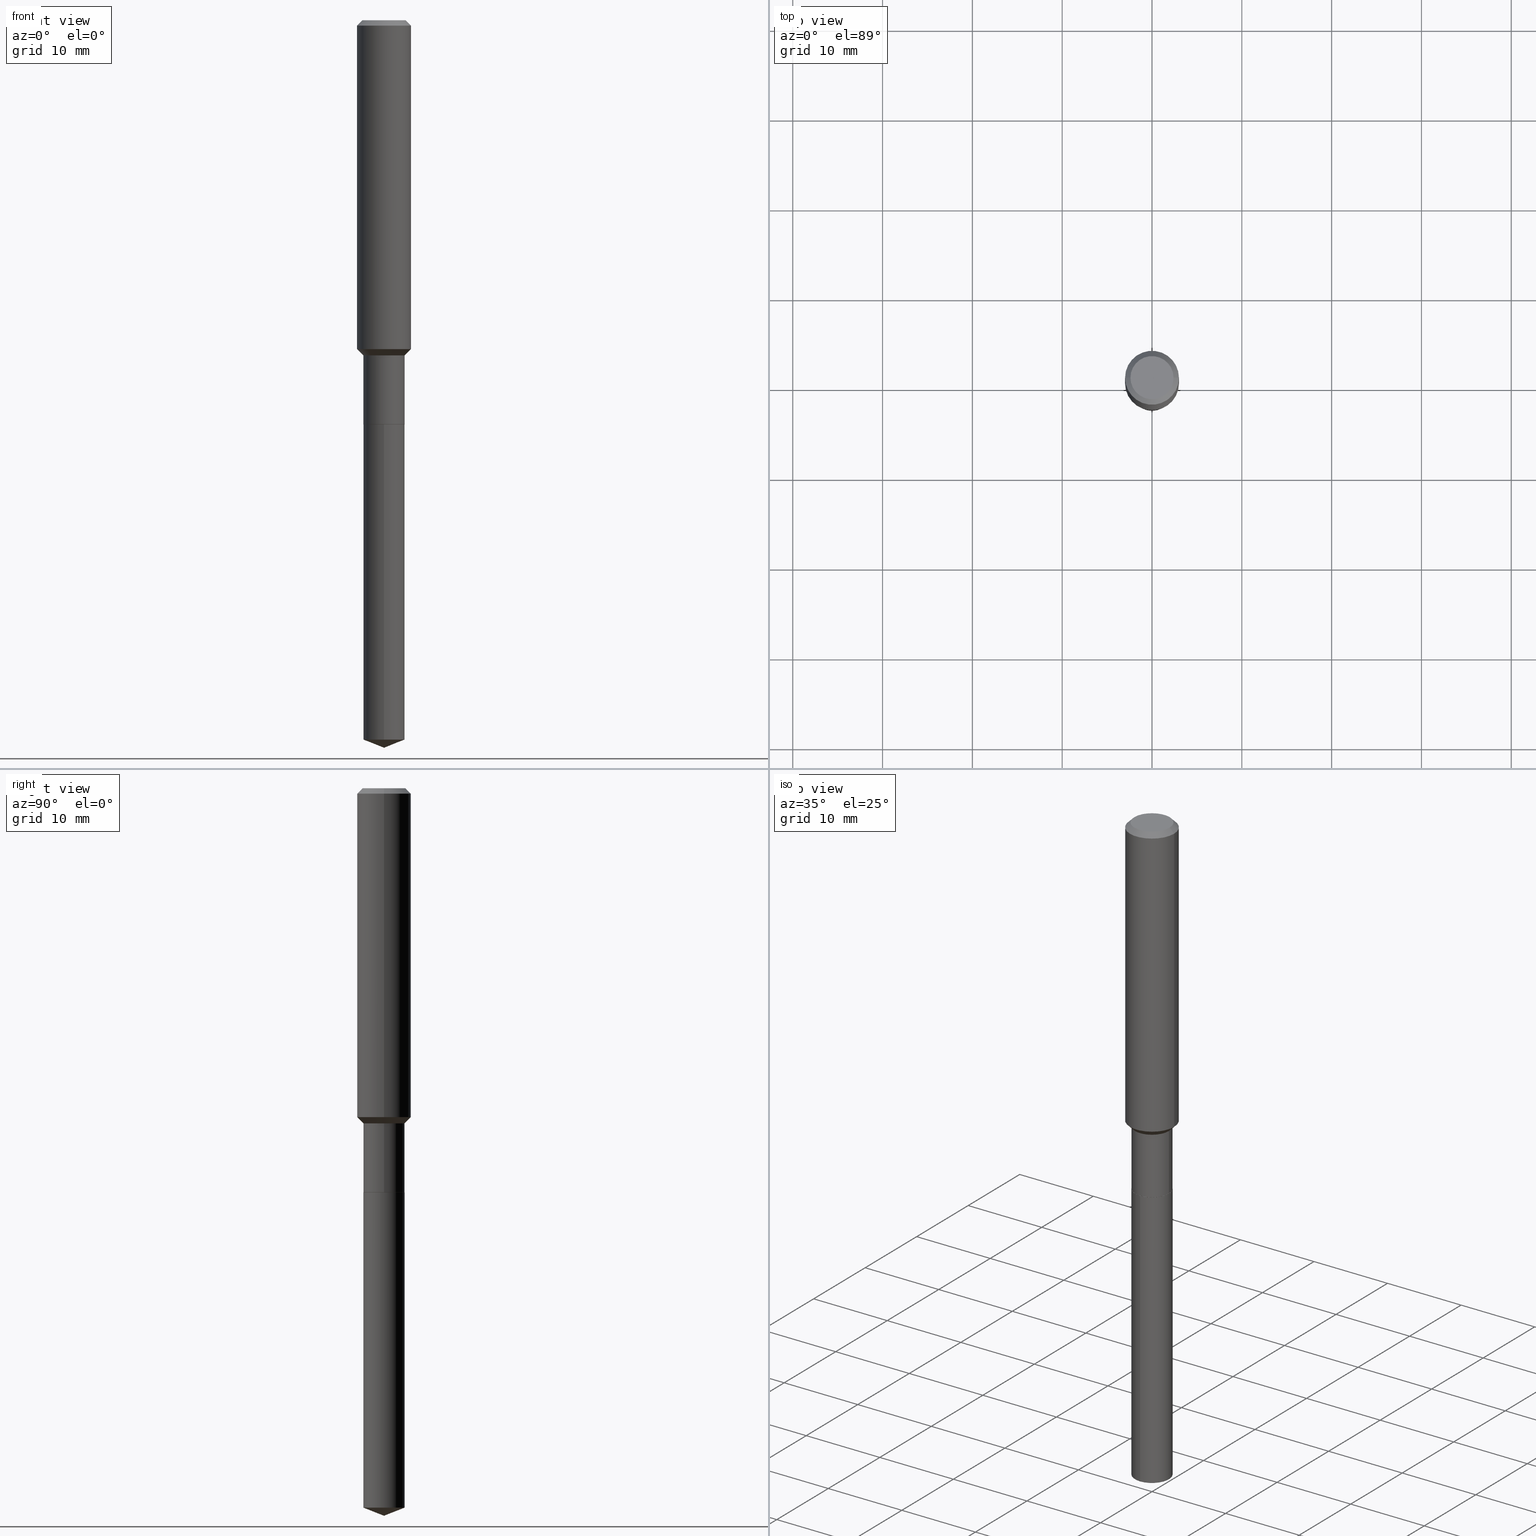
[diagram: canonical four-view strip — front | top / right | iso, engineering-drawing reading convention]
A machine part, canonical four-view strip (front | top / right | iso — engineering-drawing reading convention). The complete STEP part file that produces these views, byte-faithful:
ISO-10303-21;
HEADER;
FILE_DESCRIPTION (( 'STEP AP203' ),
    '1' );
FILE_NAME ('66622.STEP',
    '2024-04-25T02:14:11',
    ( '' ),
    ( '' ),
    'SwSTEP 2.0',
    'SolidWorks 2023',
    '' );
FILE_SCHEMA (( 'CONFIG_CONTROL_DESIGN' ));
ENDSEC;

DATA;
#1 = COORDINATED_UNIVERSAL_TIME_OFFSET ( 5, 0, .BEHIND. ) ;
#2 = LINE ( 'NONE', #375, #126 ) ;
#3 = AXIS2_PLACEMENT_3D ( 'NONE', #446, #480, #295 ) ;
#4 = CC_DESIGN_APPROVAL ( #108, ( #361 ) ) ;
#5 = CARTESIAN_POINT ( 'NONE',  ( 2.358133508849003952E-46, -3.366789680499277518E-32, -9.642868896486260050E-18 ) ) ;
#6 = DIRECTION ( 'NONE',  ( -2.445498752953222356E-29, 3.491438453366782686E-15, 1.000000000000000000 ) ) ;
#7 = PERSON ( 'UNSPECIFIED', 'UNSPECIFIED', 'UNSPECIFIED', ('UNSPECIFIED'), ('UNSPECIFIED'), ('UNSPECIFIED') ) ;
#8 = DIRECTION ( 'NONE',  ( 1.000000000000000000, -6.982962677686270655E-15, 0.000000000000000000 ) ) ;
#9 = EDGE_LOOP ( 'NONE', ( #162, #425, #11, #14 ) ) ;
#10 = DIRECTION ( 'NONE',  ( 0.7071067811864267805, -2.468850131080992517E-15, 0.7071067811866682540 ) ) ;
#11 = ORIENTED_EDGE ( 'NONE', *, *, #301, .T. ) ;
#12 = DIRECTION ( 'NONE',  ( -2.445468806185136597E-29, 3.491481338843145583E-15, 1.000000000000000000 ) ) ;
#13 = ADVANCED_FACE ( 'NONE', ( #363 ), #94, .T. ) ;
#14 = ORIENTED_EDGE ( 'NONE', *, *, #382, .F. ) ;
#15 = DIRECTION ( 'NONE',  ( 1.000000000000000000, -6.982962677686266711E-15, 0.000000000000000000 ) ) ;
#16 = ORIENTED_EDGE ( 'NONE', *, *, #246, .F. ) ;
#17 = CIRCLE ( 'NONE', #388, 0.09054999999999997773 ) ;
#18 = AXIS2_PLACEMENT_3D ( 'NONE', #403, #61, #254 ) ;
#19 = CARTESIAN_POINT ( 'NONE',  ( 0.000000000000000000, 0.000000000000000000, 0.000000000000000000 ) ) ;
#20 = ORIENTED_EDGE ( 'NONE', *, *, #484, .T. ) ;
#21 = ORIENTED_EDGE ( 'NONE', *, *, #411, .F. ) ;
#22 = LENGTH_MEASURE_WITH_UNIT ( LENGTH_MEASURE( 0.02539999999999999897 ), #101 );
#23 = FACE_OUTER_BOUND ( 'NONE', #242, .T. ) ;
#24 = COORDINATED_UNIVERSAL_TIME_OFFSET ( 5, 0, .BEHIND. ) ;
#25 = LINE ( 'NONE', #399, #220 ) ;
#26 = EDGE_CURVE ( 'NONE', #112, #98, #305, .T. ) ;
#27 = COORDINATED_UNIVERSAL_TIME_OFFSET ( 5, 0, .BEHIND. ) ;
#28 = AXIS2_PLACEMENT_3D ( 'NONE', #441, #105, #42 ) ;
#29 = DIRECTION ( 'NONE',  ( 1.000000000000000000, -6.982962677686271444E-15, 0.000000000000000000 ) ) ;
#30 = EDGE_LOOP ( 'NONE', ( #209, #132, #478, #336 ) ) ;
#31 = PRODUCT_DEFINITION ( 'UNKNOWN', '', #203, #400 ) ;
#32 = DIRECTION ( 'NONE',  ( -2.445468806185136597E-29, 3.491481338843145583E-15, 1.000000000000000000 ) ) ;
#33 = EDGE_LOOP ( 'NONE', ( #285, #323, #360, #315 ) ) ;
#34 = APPLICATION_PROTOCOL_DEFINITION ( 'international standard', 'config_control_design', 1994, #141 ) ;
#35 = CARTESIAN_POINT ( 'NONE',  ( 0.000000000000000000, 0.000000000000000000, 0.000000000000000000 ) ) ;
#36 = CLOSED_SHELL ( 'NONE', ( #137, #395, #457, #317, #157, #124, #250, #64, #13, #271, #233, #391 ) ) ;
#37 = LINE ( 'NONE', #342, #269 ) ;
#38 = AXIS2_PLACEMENT_3D ( 'NONE', #381, #190, #197 ) ;
#39 = DIRECTION ( 'NONE',  ( 1.000000000000000000, -6.982962677686265922E-15, 4.876176775795935793E-29 ) ) ;
#40 = EDGE_CURVE ( 'NONE', #318, #463, #145, .T. ) ;
#41 = PLANE ( 'NONE',  #52 ) ;
#42 = DIRECTION ( 'NONE',  ( 1.000000000000000000, -6.982962677686267499E-15, 4.875432709231658792E-29 ) ) ;
#43 = MANIFOLD_SOLID_BREP ( 'Body-Move/Copy2[1]', #359 ) ;
#44 = AXIS2_PLACEMENT_3D ( 'NONE', #345, #458, #39 ) ;
#45 = AXIS2_PLACEMENT_3D ( 'NONE', #201, #462, #15 ) ;
#46 = APPROVAL_ROLE ( '' ) ;
#47 = LINE ( 'NONE', #229, #284 ) ;
#48 = CARTESIAN_POINT ( 'NONE',  ( 3.592149129405347553E-29, -5.128636938626697499E-15, -1.468900000000000317 ) ) ;
#49 = ORIENTED_EDGE ( 'NONE', *, *, #296, .T. ) ;
#50 = DIRECTION ( 'NONE',  ( -6.982962677686265922E-15, -1.000000000000000000, 3.498627837349951369E-15 ) ) ;
#51 = EDGE_LOOP ( 'NONE', ( #136, #281 ) ) ;
#52 = AXIS2_PLACEMENT_3D ( 'NONE', #160, #456, #304 ) ;
#53 = EDGE_CURVE ( 'NONE', #279, #112, #365, .T. ) ;
#54 = DIRECTION ( 'NONE',  ( -2.445498752953222356E-29, 3.491438453366782686E-15, 1.000000000000000000 ) ) ;
#55 = EDGE_LOOP ( 'NONE', ( #251, #116 ) ) ;
#56 = CYLINDRICAL_SURFACE ( 'NONE', #416, 0.09055000000000000548 ) ;
#57 = EDGE_LOOP ( 'NONE', ( #90, #465 ) ) ;
#58 = CARTESIAN_POINT ( 'NONE',  ( 6.433964472308481643E-16, 0.09054999999999382987, -1.771700000000000719 ) ) ;
#59 = VERTEX_POINT ( 'NONE', #472 ) ;
#60 = LOCAL_TIME ( 22, 14, 11.00000000000000000, #438 ) ;
#61 = DIRECTION ( 'NONE',  ( 0.000000000000000000, 0.000000000000000000, 1.000000000000000000 ) ) ;
#62 = APPROVAL ( #71, 'UNSPECIFIED' ) ;
#63 = DIRECTION ( 'NONE',  ( -2.445468806185136597E-29, 3.491481338843145583E-15, 1.000000000000000000 ) ) ;
#64 = ADVANCED_FACE ( 'NONE', ( #23 ), #255, .T. ) ;
#65 = PERSON_AND_ORGANIZATION ( #7, #370 ) ;
#66 = DIRECTION ( 'NONE',  ( -1.000000000000000000, 6.982962677686266711E-15, 0.000000000000000000 ) ) ;
#67 = ORIENTED_EDGE ( 'NONE', *, *, #256, .F. ) ;
#68 = DATE_AND_TIME ( #405, #351 ) ;
#69 = VERTEX_POINT ( 'NONE', #174 ) ;
#70 = AXIS2_PLACEMENT_3D ( 'NONE', #327, #63, #184 ) ;
#71 = APPROVAL_STATUS ( 'not_yet_approved' ) ;
#72 = ORIENTED_EDGE ( 'NONE', *, *, #109, .T. ) ;
#73 = APPROVAL_DATE_TIME ( #410, #62 ) ;
#74 = DIRECTION ( 'NONE',  ( 0.7071067811865487940, -2.468850131082270471E-15, 0.7071067811865462405 ) ) ;
#75 = CARTESIAN_POINT ( 'NONE',  ( 4.716267017698007905E-46, -6.733579360998555036E-32, -1.928573779297252010E-17 ) ) ;
#76 = EDGE_CURVE ( 'NONE', #386, #318, #25, .T. ) ;
#77 = DIRECTION ( 'NONE',  ( 1.000000000000000000, -6.982962677686267499E-15, 4.875432709231658792E-29 ) ) ;
#78 = CIRCLE ( 'NONE', #95, 0.1181000000000001632 ) ;
#79 = CIRCLE ( 'NONE', #149, 0.09005000000000000504 ) ;
#80 = EDGE_CURVE ( 'NONE', #138, #386, #485, .T. ) ;
#81 = PERSON_AND_ORGANIZATION ( #7, #370 ) ;
#82 = FACE_OUTER_BOUND ( 'NONE', #211, .T. ) ;
#83 = DIRECTION ( 'NONE',  ( -2.445468806185136597E-29, 3.491481338843145583E-15, 1.000000000000000000 ) ) ;
#84 = APPROVAL ( #147, 'UNSPECIFIED' ) ;
#85 = EDGE_CURVE ( 'NONE', #98, #112, #133, .T. ) ;
#86 = CARTESIAN_POINT ( 'NONE',  ( 7.798695523167827716E-29, -1.113419722778666995E-14, -3.189000000000000501 ) ) ;
#87 = AXIS2_PLACEMENT_3D ( 'NONE', #236, #383, #247 ) ;
#88 = DIRECTION ( 'NONE',  ( -2.445468806185136597E-29, 3.491481338843145583E-15, 1.000000000000000000 ) ) ;
#89 = FACE_OUTER_BOUND ( 'NONE', #248, .T. ) ;
#90 = ORIENTED_EDGE ( 'NONE', *, *, #151, .T. ) ;
#91 = APPLICATION_CONTEXT ( 'configuration controlled 3d designs of mechanical parts and assemblies' ) ;
#92 = CARTESIAN_POINT ( 'NONE',  ( 0.1181000000000001632, -5.857134519976318154E-15, -1.441350000000000131 ) ) ;
#93 = VERTEX_POINT ( 'NONE', #374 ) ;
#94 = CONICAL_SURFACE ( 'NONE', #177, 0.1180999999999999966, 0.7853981633974460586 ) ;
#95 = AXIS2_PLACEMENT_3D ( 'NONE', #354, #314, #8 ) ;
#96 = CC_DESIGN_APPROVAL ( #84, ( #31 ) ) ;
#97 = DIRECTION ( 'NONE',  ( -2.445498752953222356E-29, 3.491438453366782686E-15, 1.000000000000000000 ) ) ;
#98 = VERTEX_POINT ( 'NONE', #333 ) ;
#99 = LINE ( 'NONE', #319, #453 ) ;
#100 = ORIENTED_EDGE ( 'NONE', *, *, #53, .F. ) ;
#101 =( LENGTH_UNIT ( ) NAMED_UNIT ( * ) SI_UNIT ( $, .METRE. ) );
#102 = ORIENTED_EDGE ( 'NONE', *, *, #166, .T. ) ;
#103 = AXIS2_PLACEMENT_3D ( 'NONE', #75, #119, #77 ) ;
#104 = DIRECTION ( 'NONE',  ( 1.000000000000000000, -6.982962677686266711E-15, 0.000000000000000000 ) ) ;
#105 = DIRECTION ( 'NONE',  ( -2.445468806185136597E-29, 3.491481338843145583E-15, 1.000000000000000000 ) ) ;
#106 = SECURITY_CLASSIFICATION_LEVEL ( 'unclassified' ) ;
#107 = DIRECTION ( 'NONE',  ( -6.497071151882132458E-15, -0.9304175679820264611, 0.3665012267242923061 ) ) ;
#108 = APPROVAL ( #266, 'UNSPECIFIED' ) ;
#109 = EDGE_CURVE ( 'NONE', #362, #463, #258, .T. ) ;
#110 = PERSON_AND_ORGANIZATION_ROLE ( 'design_supplier' ) ;
#111 = CARTESIAN_POINT ( 'NONE',  ( -6.323072704644144570E-16, -0.09055000000001103833, -3.153331406433067752 ) ) ;
#112 = VERTEX_POINT ( 'NONE', #111 ) ;
#113 = DIRECTION ( 'NONE',  ( 1.000000000000000000, -6.982962677686271444E-15, 0.000000000000000000 ) ) ;
#114 = CIRCLE ( 'NONE', #487, 0.09054999999999997773 ) ;
#115 = CARTESIAN_POINT ( 'NONE',  ( 7.711414965391280947E-29, -1.100973850882804455E-14, -3.153331406433068196 ) ) ;
#116 = ORIENTED_EDGE ( 'NONE', *, *, #237, .F. ) ;
#117 = EDGE_CURVE ( 'NONE', #138, #320, #139, .T. ) ;
#118 = DIRECTION ( 'NONE',  ( -6.982962677686266711E-15, -1.000000000000000000, 3.016949744521549444E-15 ) ) ;
#119 = DIRECTION ( 'NONE',  ( -2.445468806185136597E-29, 3.491481338843145583E-15, 1.000000000000000000 ) ) ;
#120 = AXIS2_PLACEMENT_3D ( 'NONE', #48, #12, #423 ) ;
#121 =( GEOMETRIC_REPRESENTATION_CONTEXT ( 3 ) GLOBAL_UNCERTAINTY_ASSIGNED_CONTEXT ( ( #387 ) ) GLOBAL_UNIT_ASSIGNED_CONTEXT ( ( #216, #479, #334 ) ) REPRESENTATION_CONTEXT ( 'NONE', 'WORKASPACE' ) );
#122 = CARTESIAN_POINT ( 'NONE',  ( 7.798696453656895021E-29, -1.113419722778667310E-14, -3.189000000000000501 ) ) ;
#123 = CARTESIAN_POINT ( 'NONE',  ( -8.848083599624647937E-28, 1.263239336174787439E-13, 36.18107874015748138 ) ) ;
#124 = ADVANCED_FACE ( 'NONE', ( #368 ), #293, .T. ) ;
#125 = DIRECTION ( 'NONE',  ( -2.445468806185136597E-29, 3.491481338843145583E-15, 1.000000000000000000 ) ) ;
#126 = VECTOR ( 'NONE', #158, 39.37007874015748143 ) ;
#127 = CARTESIAN_POINT ( 'NONE',  ( 4.332637083918206987E-29, -6.185857488028401870E-15, -1.771700000000000497 ) ) ;
#128 = ORIENTED_EDGE ( 'NONE', *, *, #40, .F. ) ;
#129 = DIRECTION ( 'NONE',  ( 1.000000000000000000, -6.982962677686266711E-15, 4.876176775795936353E-29 ) ) ;
#130 = ORIENTED_EDGE ( 'NONE', *, *, #117, .F. ) ;
#131 = DIRECTION ( 'NONE',  ( 2.445468806185136597E-29, -3.491481338843145583E-15, -1.000000000000000000 ) ) ;
#132 = ORIENTED_EDGE ( 'NONE', *, *, #198, .T. ) ;
#133 = CIRCLE ( 'NONE', #406, 0.09055000000000000548 ) ;
#134 = AXIS2_PLACEMENT_3D ( 'NONE', #450, #482, #29 ) ;
#135 = CARTESIAN_POINT ( 'NONE',  ( 0.09055000000000000548, -6.816419017823473414E-15, -1.771200000000000552 ) ) ;
#136 = ORIENTED_EDGE ( 'NONE', *, *, #142, .T. ) ;
#137 = ADVANCED_FACE ( 'NONE', ( #300 ), #195, .T. ) ;
#138 = VERTEX_POINT ( 'NONE', #291 ) ;
#139 = LINE ( 'NONE', #373, #261 ) ;
#140 = CONICAL_SURFACE ( 'NONE', #178, 0.09005000000000000504, 0.7853981633972775267 ) ;
#141 = APPLICATION_CONTEXT ( 'configuration controlled 3d designs of mechanical parts and assemblies' ) ;
#142 = EDGE_CURVE ( 'NONE', #165, #287, #337, .T. ) ;
#143 = DIRECTION ( 'NONE',  ( -2.445468806185136597E-29, 3.491481338843145583E-15, 1.000000000000000000 ) ) ;
#144 = DATE_AND_TIME ( #469, #212 ) ;
#145 = LINE ( 'NONE', #412, #154 ) ;
#146 = ADVANCED_FACE ( 'NONE', ( #490 ), #41, .F. ) ;
#147 = APPROVAL_STATUS ( 'not_yet_approved' ) ;
#148 = ORIENTED_EDGE ( 'NONE', *, *, #282, .F. ) ;
#149 = AXIS2_PLACEMENT_3D ( 'NONE', #326, #32, #113 ) ;
#150 = DIRECTION ( 'NONE',  ( -6.982962677686266711E-15, -1.000000000000000000, 6.033899489043098888E-15 ) ) ;
#151 = EDGE_CURVE ( 'NONE', #59, #347, #299, .T. ) ;
#152 = DIRECTION ( 'NONE',  ( 1.000000000000000000, -6.982962677686268288E-15, 0.000000000000000000 ) ) ;
#153 = CARTESIAN_POINT ( 'NONE',  ( -0.1180999999999999966, 7.422191030112725094E-16, -0.02362000000000014088 ) ) ;
#154 = VECTOR ( 'NONE', #74, 39.37007874015748143 ) ;
#155 = AXIS2_PLACEMENT_3D ( 'NONE', #346, #131, #424 ) ;
#156 = DIRECTION ( 'NONE',  ( -2.445468806185136597E-29, 3.491481338843145583E-15, 1.000000000000000000 ) ) ;
#157 = ADVANCED_FACE ( 'NONE', ( #310 ), #379, .T. ) ;
#158 = DIRECTION ( 'NONE',  ( -2.445498752953222356E-29, 3.491438453366782686E-15, 1.000000000000000000 ) ) ;
#159 = ADVANCED_BREP_SHAPE_REPRESENTATION ( '66622', ( #43, #380, #18 ), #121 ) ;
#160 = CARTESIAN_POINT ( 'NONE',  ( 4.332637083918206987E-29, -6.185857488028401870E-15, -1.771700000000000497 ) ) ;
#161 = DIRECTION ( 'NONE',  ( 1.000000000000000000, -6.982962677686271444E-15, 0.000000000000000000 ) ) ;
#162 = ORIENTED_EDGE ( 'NONE', *, *, #231, .F. ) ;
#163 = AXIS2_PLACEMENT_3D ( 'NONE', #267, #6, #118 ) ;
#164 = CARTESIAN_POINT ( 'NONE',  ( -0.1181000000000000799, 8.391509709326788873E-16, -5.809262341591047988E-30 ) ) ;
#165 = VERTEX_POINT ( 'NONE', #193 ) ;
#166 = EDGE_CURVE ( 'NONE', #165, #182, #226, .T. ) ;
#167 = CARTESIAN_POINT ( 'NONE',  ( 0.09054999999999997773, -5.760944209091188969E-15, -1.468900000000000317 ) ) ;
#168 = ORIENTED_EDGE ( 'NONE', *, *, #353, .T. ) ;
#169 = FACE_OUTER_BOUND ( 'NONE', #9, .T. ) ;
#170 = ORIENTED_EDGE ( 'NONE', *, *, #215, .T. ) ;
#171 = AXIS2_PLACEMENT_3D ( 'NONE', #5, #273, #421 ) ;
#172 = DIRECTION ( 'NONE',  ( -2.445498752953222356E-29, 3.491438453366782686E-15, 1.000000000000000000 ) ) ;
#173 = EDGE_LOOP ( 'NONE', ( #445, #427, #442, #397 ) ) ;
#174 = CARTESIAN_POINT ( 'NONE',  ( 0.1180999999999999966, -9.071566814582237199E-16, -0.02362000000000014088 ) ) ;
#175 = PERSON_AND_ORGANIZATION ( #7, #370 ) ;
#176 = DIRECTION ( 'NONE',  ( -6.982962677686266711E-15, -1.000000000000000000, 6.033899489043098888E-15 ) ) ;
#177 = AXIS2_PLACEMENT_3D ( 'NONE', #476, #223, #66 ) ;
#178 = AXIS2_PLACEMENT_3D ( 'NONE', #384, #199, #161 ) ;
#179 = CONICAL_SURFACE ( 'NONE', #417, 99.94676754584148171, 1.195550537616124620 ) ;
#180 = COORDINATED_UNIVERSAL_TIME_OFFSET ( 5, 0, .BEHIND. ) ;
#181 = ORIENTED_EDGE ( 'NONE', *, *, #80, .T. ) ;
#182 = VERTEX_POINT ( 'NONE', #415 ) ;
#183 = DIRECTION ( 'NONE',  ( -2.445468806185136597E-29, 3.491481338843145583E-15, 1.000000000000000000 ) ) ;
#184 = DIRECTION ( 'NONE',  ( 1.000000000000000000, -6.982962677686266711E-15, 0.000000000000000000 ) ) ;
#185 = DIRECTION ( 'NONE',  ( -2.445468806185136597E-29, 3.491481338843145583E-15, 1.000000000000000000 ) ) ;
#186 = PRODUCT_RELATED_PRODUCT_CATEGORY ( 'detail', '', ( #437 ) ) ;
#187 = APPROVAL_DATE_TIME ( #413, #108 ) ;
#188 = DIRECTION ( 'NONE',  ( -2.445468806185136877E-29, 3.491481338843145188E-15, 1.000000000000000000 ) ) ;
#189 = SHAPE_DEFINITION_REPRESENTATION ( #474, #159 ) ;
#190 = DIRECTION ( 'NONE',  ( -2.445468806185136597E-29, 3.491481338843145583E-15, 1.000000000000000000 ) ) ;
#191 = CC_DESIGN_PERSON_AND_ORGANIZATION_ASSIGNMENT ( #372, #224, ( #361 ) ) ;
#192 = EDGE_CURVE ( 'NONE', #287, #165, #369, .T. ) ;
#193 = CARTESIAN_POINT ( 'NONE',  ( -0.09447999999999998066, 7.009847083995354710E-16, -1.928573779297727792E-17 ) ) ;
#194 = CALENDAR_DATE ( 2024, 24, 4 ) ;
#195 = CONICAL_SURFACE ( 'NONE', #134, 0.09005000000000000504, 0.7853981633972775267 ) ;
#196 = FACE_OUTER_BOUND ( 'NONE', #51, .T. ) ;
#197 = DIRECTION ( 'NONE',  ( 1.000000000000000000, -6.982962677686271444E-15, 0.000000000000000000 ) ) ;
#198 = EDGE_CURVE ( 'NONE', #93, #138, #47, .T. ) ;
#199 = DIRECTION ( 'NONE',  ( -2.445468806185136597E-29, 3.491481338843145583E-15, 1.000000000000000000 ) ) ;
#200 = ORIENTED_EDGE ( 'NONE', *, *, #76, .T. ) ;
#201 = CARTESIAN_POINT ( 'NONE',  ( 4.331414349515115307E-29, -6.184111747358981944E-15, -1.771200000000000552 ) ) ;
#202 = ORIENTED_EDGE ( 'NONE', *, *, #166, .F. ) ;
#203 = PRODUCT_DEFINITION_FORMATION_WITH_SPECIFIED_SOURCE ( 'ANY', '', #437, .NOT_KNOWN. ) ;
#204 = DIRECTION ( 'NONE',  ( 0.7071067811865459074, -7.319954787623249734E-15, -0.7071067811865491270 ) ) ;
#205 = ORIENTED_EDGE ( 'NONE', *, *, #142, .F. ) ;
#206 = DIRECTION ( 'NONE',  ( -6.982962677686266711E-15, -1.000000000000000000, 3.016949744521549444E-15 ) ) ;
#207 = EDGE_LOOP ( 'NONE', ( #49, #168, #325, #288 ) ) ;
#208 = CARTESIAN_POINT ( 'NONE',  ( -0.09054999999999997773, -5.012977895762068866E-15, -1.468900000000000317 ) ) ;
#209 = ORIENTED_EDGE ( 'NONE', *, *, #471, .T. ) ;
#210 = AXIS2_PLACEMENT_3D ( 'NONE', #452, #451, #378 ) ;
#211 = EDGE_LOOP ( 'NONE', ( #67, #221, #225, #396 ) ) ;
#212 = LOCAL_TIME ( 22, 14, 11.00000000000000000, #27 ) ;
#213 = DATE_TIME_ROLE ( 'creation_date' ) ;
#214 = ORIENTED_EDGE ( 'NONE', *, *, #282, .T. ) ;
#215 = EDGE_CURVE ( 'NONE', #463, #69, #37, .T. ) ;
#216 =( CONVERSION_BASED_UNIT ( 'INCH', #22 ) LENGTH_UNIT ( ) NAMED_UNIT ( #434 ) );
#217 = DIRECTION ( 'NONE',  ( -2.445498752953222356E-29, 3.491438453366782686E-15, 1.000000000000000000 ) ) ;
#218 = PERSON_AND_ORGANIZATION ( #7, #370 ) ;
#219 = DIRECTION ( 'NONE',  ( 1.000000000000000000, -6.982962677686270655E-15, 0.000000000000000000 ) ) ;
#220 = VECTOR ( 'NONE', #298, 39.37007874015748143 ) ;
#221 = ORIENTED_EDGE ( 'NONE', *, *, #268, .T. ) ;
#222 = CALENDAR_DATE ( 2024, 24, 4 ) ;
#223 = DIRECTION ( 'NONE',  ( 2.445468806185136597E-29, -3.491481338843145583E-15, -1.000000000000000000 ) ) ;
#224 = PERSON_AND_ORGANIZATION_ROLE ( 'classification_officer' ) ;
#225 = ORIENTED_EDGE ( 'NONE', *, *, #40, .T. ) ;
#226 = LINE ( 'NONE', #153, #349 ) ;
#227 = CIRCLE ( 'NONE', #87, 0.1180999999999999966 ) ;
#228 = APPROVAL_PERSON_ORGANIZATION ( #443, #62, #263 ) ;
#229 = CARTESIAN_POINT ( 'NONE',  ( -0.09005000000000000504, -5.546013754476432702E-15, -1.771700000000000719 ) ) ;
#230 = CC_DESIGN_DATE_AND_TIME_ASSIGNMENT ( #339, #303, ( #361 ) ) ;
#231 = EDGE_CURVE ( 'NONE', #98, #347, #2, .T. ) ;
#232 = DIRECTION ( 'NONE',  ( 6.611014441532080000E-15, 0.9304175679820290146, 0.3665012267242857003 ) ) ;
#233 = ADVANCED_FACE ( 'NONE', ( #418 ), #311, .F. ) ;
#234 = DIRECTION ( 'NONE',  ( 1.000000000000000000, -6.982962677686268288E-15, 0.000000000000000000 ) ) ;
#235 = CONICAL_SURFACE ( 'NONE', #120, 0.09054999999999997773, 0.7853981633974501664 ) ;
#236 = CARTESIAN_POINT ( 'NONE',  ( 5.776197320209327532E-31, -8.246878922347559293E-17, -0.02362000000000014088 ) ) ;
#237 = EDGE_CURVE ( 'NONE', #93, #468, #429, .T. ) ;
#238 = FACE_OUTER_BOUND ( 'NONE', #357, .T. ) ;
#239 = CARTESIAN_POINT ( 'NONE',  ( -0.1181000000000001632, -4.193295656808889328E-15, -1.441350000000000131 ) ) ;
#240 = ORIENTED_EDGE ( 'NONE', *, *, #198, .F. ) ;
#241 = CARTESIAN_POINT ( 'NONE',  ( 0.09005000000000000504, -6.814673277154051910E-15, -1.771700000000000719 ) ) ;
#242 = EDGE_LOOP ( 'NONE', ( #439, #72, #170, #148 ) ) ;
#243 = AXIS2_PLACEMENT_3D ( 'NONE', #123, #272, #419 ) ;
#244 = CARTESIAN_POINT ( 'NONE',  ( 3.592149129405347553E-29, -5.128636938626697499E-15, -1.468900000000000317 ) ) ;
#245 = ORIENTED_EDGE ( 'NONE', *, *, #411, .T. ) ;
#246 = EDGE_CURVE ( 'NONE', #279, #98, #341, .T. ) ;
#247 = DIRECTION ( 'NONE',  ( 1.000000000000000000, -6.982962677686266711E-15, 0.000000000000000000 ) ) ;
#248 = EDGE_LOOP ( 'NONE', ( #16, #264, #249 ) ) ;
#249 = ORIENTED_EDGE ( 'NONE', *, *, #85, .F. ) ;
#250 = ADVANCED_FACE ( 'NONE', ( #82 ), #466, .T. ) ;
#251 = ORIENTED_EDGE ( 'NONE', *, *, #471, .F. ) ;
#252 = AXIS2_PLACEMENT_3D ( 'NONE', #127, #97, #324 ) ;
#253 = ORIENTED_EDGE ( 'NONE', *, *, #26, .F. ) ;
#254 = DIRECTION ( 'NONE',  ( 1.000000000000000000, 0.000000000000000000, 0.000000000000000000 ) ) ;
#255 = CYLINDRICAL_SURFACE ( 'NONE', #3, 0.1181000000000000799 ) ;
#256 = EDGE_CURVE ( 'NONE', #320, #362, #309, .T. ) ;
#257 = DIRECTION ( 'NONE',  ( 1.000000000000000000, -6.982962677686266711E-15, 4.876176775795935793E-29 ) ) ;
#258 = CIRCLE ( 'NONE', #275, 0.1181000000000001632 ) ;
#259 = ORIENTED_EDGE ( 'NONE', *, *, #192, .F. ) ;
#260 = CC_DESIGN_DATE_AND_TIME_ASSIGNMENT ( #144, #213, ( #31 ) ) ;
#261 = VECTOR ( 'NONE', #407, 39.37007874015748143 ) ;
#262 = ADVANCED_FACE ( 'NONE', ( #455 ), #308, .T. ) ;
#263 = APPROVAL_ROLE ( '' ) ;
#264 = ORIENTED_EDGE ( 'NONE', *, *, #53, .T. ) ;
#265 = CARTESIAN_POINT ( 'NONE',  ( -0.09054999999999997773, -4.485240491395926643E-15, -1.468900000000000317 ) ) ;
#266 = APPROVAL_STATUS ( 'not_yet_approved' ) ;
#267 = CARTESIAN_POINT ( 'NONE',  ( 4.332637083918206987E-29, -6.185857488028401870E-15, -1.771700000000000497 ) ) ;
#268 = EDGE_CURVE ( 'NONE', #320, #318, #114, .T. ) ;
#269 = VECTOR ( 'NONE', #188, 39.37007874015748143 ) ;
#270 = DIRECTION ( 'NONE',  ( -0.7071067811864267805, 7.493145998869918709E-15, 0.7071067811866682540 ) ) ;
#271 = ADVANCED_FACE ( 'NONE', ( #196 ), #344, .F. ) ;
#272 = DIRECTION ( 'NONE',  ( -2.445498752953222356E-29, 3.491438453366782686E-15, 1.000000000000000000 ) ) ;
#273 = DIRECTION ( 'NONE',  ( 2.438088387897960049E-29, -3.491481338843145188E-15, -1.000000000000000000 ) ) ;
#274 = CC_DESIGN_PERSON_AND_ORGANIZATION_ASSIGNMENT ( #65, #401, ( #437 ) ) ;
#275 = AXIS2_PLACEMENT_3D ( 'NONE', #335, #143, #219 ) ;
#276 = CARTESIAN_POINT ( 'NONE',  ( 0.09447999999999998066, -7.704367267948738690E-16, -1.928573779296752193E-17 ) ) ;
#277 = CIRCLE ( 'NONE', #45, 0.09055000000000000548 ) ;
#278 = CARTESIAN_POINT ( 'NONE',  ( 4.332637083918206987E-29, -6.185857488028401870E-15, -1.771700000000000497 ) ) ;
#279 = VERTEX_POINT ( 'NONE', #86 ) ;
#280 = DIRECTION ( 'NONE',  ( -2.445498752953222356E-29, 3.491438453366782686E-15, 1.000000000000000000 ) ) ;
#281 = ORIENTED_EDGE ( 'NONE', *, *, #192, .T. ) ;
#282 = EDGE_CURVE ( 'NONE', #182, #69, #227, .T. ) ;
#283 = DIRECTION ( 'NONE',  ( -2.445498752953222356E-29, 3.491438453366782686E-15, 1.000000000000000000 ) ) ;
#284 = VECTOR ( 'NONE', #270, 39.37007874015748143 ) ;
#285 = ORIENTED_EDGE ( 'NONE', *, *, #428, .T. ) ;
#286 = CARTESIAN_POINT ( 'NONE',  ( 4.332637083918206987E-29, -6.185857488028401870E-15, -1.771700000000000497 ) ) ;
#287 = VERTEX_POINT ( 'NONE', #276 ) ;
#288 = ORIENTED_EDGE ( 'NONE', *, *, #215, .F. ) ;
#289 = APPLICATION_PROTOCOL_DEFINITION ( 'international standard', 'config_control_design', 1994, #91 ) ;
#290 = ADVANCED_FACE ( 'NONE', ( #169 ), #56, .T. ) ;
#291 = CARTESIAN_POINT ( 'NONE',  ( -0.09055000000000000548, -5.012977895762068866E-15, -1.771200000000000552 ) ) ;
#292 = CARTESIAN_POINT ( 'NONE',  ( 5.776197320209327532E-31, -8.246878922347559293E-17, -0.02362000000000014088 ) ) ;
#293 = CYLINDRICAL_SURFACE ( 'NONE', #408, 0.09054999999999999161 ) ;
#294 = PERSON_AND_ORGANIZATION_ROLE ( 'creator' ) ;
#295 = DIRECTION ( 'NONE',  ( 1.000000000000000000, -6.982962677686266711E-15, 4.876176775795936353E-29 ) ) ;
#296 = EDGE_CURVE ( 'NONE', #463, #362, #78, .T. ) ;
#297 = APPROVAL_DATE_TIME ( #68, #84 ) ;
#298 = DIRECTION ( 'NONE',  ( -2.445468806185136877E-29, 3.491481338843145188E-15, 1.000000000000000000 ) ) ;
#299 = CIRCLE ( 'NONE', #163, 0.09055000000000000548 ) ;
#300 = FACE_OUTER_BOUND ( 'NONE', #30, .T. ) ;
#301 = EDGE_CURVE ( 'NONE', #112, #59, #321, .T. ) ;
#302 = CARTESIAN_POINT ( 'NONE',  ( 3.592149129405347553E-29, -5.128636938626697499E-15, -1.468900000000000317 ) ) ;
#303 = DATE_TIME_ROLE ( 'classification_date' ) ;
#304 = DIRECTION ( 'NONE',  ( 6.982962677686265922E-15, 1.000000000000000000, -3.491438453366782686E-15 ) ) ;
#305 = CIRCLE ( 'NONE', #367, 0.09055000000000000548 ) ;
#306 = CONICAL_SURFACE ( 'NONE', #155, 0.1180999999999999966, 0.7853981633974460586 ) ;
#307 = CALENDAR_DATE ( 2024, 24, 4 ) ;
#308 = CONICAL_SURFACE ( 'NONE', #243, 99.94676754584148171, 1.195550537616124620 ) ;
#309 = LINE ( 'NONE', #265, #322 ) ;
#310 = FACE_OUTER_BOUND ( 'NONE', #33, .T. ) ;
#311 = PLANE ( 'NONE',  #44 ) ;
#312 = VECTOR ( 'NONE', #107, 39.37007874015748854 ) ;
#313 = VECTOR ( 'NONE', #10, 39.37007874015748143 ) ;
#314 = DIRECTION ( 'NONE',  ( -2.445468806185136597E-29, 3.491481338843145583E-15, 1.000000000000000000 ) ) ;
#315 = ORIENTED_EDGE ( 'NONE', *, *, #76, .F. ) ;
#316 = CYLINDRICAL_SURFACE ( 'NONE', #409, 0.1181000000000000799 ) ;
#317 = ADVANCED_FACE ( 'NONE', ( #460 ), #235, .T. ) ;
#318 = VERTEX_POINT ( 'NONE', #167 ) ;
#319 = CARTESIAN_POINT ( 'NONE',  ( 0.1180999999999999966, -8.926936027602933910E-16, -0.02362000000000014088 ) ) ;
#320 = VERTEX_POINT ( 'NONE', #208 ) ;
#321 = LINE ( 'NONE', #435, #398 ) ;
#322 = VECTOR ( 'NONE', #414, 39.37007874015748143 ) ;
#323 = ORIENTED_EDGE ( 'NONE', *, *, #117, .T. ) ;
#324 = DIRECTION ( 'NONE',  ( -6.982962677686266711E-15, -1.000000000000000000, 3.016949744521549444E-15 ) ) ;
#325 = ORIENTED_EDGE ( 'NONE', *, *, #484, .F. ) ;
#326 = CARTESIAN_POINT ( 'NONE',  ( 4.332637083918208108E-29, -6.185857488028402659E-15, -1.771700000000000719 ) ) ;
#327 = CARTESIAN_POINT ( 'NONE',  ( 4.331414349515115307E-29, -6.184111747358981944E-15, -1.771200000000000552 ) ) ;
#328 = PERSON_AND_ORGANIZATION ( #7, #370 ) ;
#329 = DIRECTION ( 'NONE',  ( -2.445498752953222356E-29, 3.491438453366782686E-15, 1.000000000000000000 ) ) ;
#330 = APPROVAL_PERSON_ORGANIZATION ( #81, #108, #46 ) ;
#331 = CC_DESIGN_PERSON_AND_ORGANIZATION_ASSIGNMENT ( #473, #110, ( #203 ) ) ;
#332 = EDGE_CURVE ( 'NONE', #318, #320, #17, .T. ) ;
#333 = CARTESIAN_POINT ( 'NONE',  ( 6.433964472308480656E-16, 0.09054999999998902815, -3.153331406433068640 ) ) ;
#334 =( NAMED_UNIT ( * ) SI_UNIT ( $, .STERADIAN. ) SOLID_ANGLE_UNIT ( ) );
#335 = CARTESIAN_POINT ( 'NONE',  ( 3.524776463794946972E-29, -5.032446627741569103E-15, -1.441350000000000131 ) ) ;
#336 = ORIENTED_EDGE ( 'NONE', *, *, #376, .F. ) ;
#337 = CIRCLE ( 'NONE', #28, 0.09447999999999998066 ) ;
#338 = CC_DESIGN_SECURITY_CLASSIFICATION ( #361, ( #203 ) ) ;
#339 = DATE_AND_TIME ( #307, #60 ) ;
#340 = DIRECTION ( 'NONE',  ( -0.7071067811865459074, 2.468850131082240100E-15, -0.7071067811865491270 ) ) ;
#341 = LINE ( 'NONE', #122, #343 ) ;
#342 = CARTESIAN_POINT ( 'NONE',  ( 0.1181000000000000799, -8.246878922347486570E-16, 5.758764772215004644E-30 ) ) ;
#343 = VECTOR ( 'NONE', #232, 39.37007874015748854 ) ;
#344 = PLANE ( 'NONE',  #171 ) ;
#345 = CARTESIAN_POINT ( 'NONE',  ( 5.794283403838629838E-30, -1.156066602814497947E-14, -1.771700000000000719 ) ) ;
#346 = CARTESIAN_POINT ( 'NONE',  ( 5.776197320209327532E-31, -8.246878922347559293E-17, -0.02362000000000014088 ) ) ;
#347 = VERTEX_POINT ( 'NONE', #58 ) ;
#348 = ADVANCED_FACE ( 'NONE', ( #467 ), #350, .T. ) ;
#349 = VECTOR ( 'NONE', #340, 39.37007874015748143 ) ;
#350 = CYLINDRICAL_SURFACE ( 'NONE', #252, 0.09055000000000000548 ) ;
#351 = LOCAL_TIME ( 22, 14, 11.00000000000000000, #24 ) ;
#352 = ORIENTED_EDGE ( 'NONE', *, *, #332, .T. ) ;
#353 = EDGE_CURVE ( 'NONE', #362, #182, #358, .T. ) ;
#354 = CARTESIAN_POINT ( 'NONE',  ( 3.524776463794946972E-29, -5.032446627741569103E-15, -1.441350000000000131 ) ) ;
#355 = ORIENTED_EDGE ( 'NONE', *, *, #246, .T. ) ;
#356 = FACE_OUTER_BOUND ( 'NONE', #449, .T. ) ;
#357 = EDGE_LOOP ( 'NONE', ( #240, #447, #393, #390 ) ) ;
#358 = LINE ( 'NONE', #164, #459 ) ;
#359 = CLOSED_SHELL ( 'NONE', ( #348, #262, #420, #290, #146 ) ) ;
#360 = ORIENTED_EDGE ( 'NONE', *, *, #332, .F. ) ;
#361 = SECURITY_CLASSIFICATION ( '', '', #106 ) ;
#362 = VERTEX_POINT ( 'NONE', #239 ) ;
#363 = FACE_OUTER_BOUND ( 'NONE', #461, .T. ) ;
#364 = APPROVAL_ROLE ( '' ) ;
#365 = LINE ( 'NONE', #486, #312 ) ;
#366 = ORIENTED_EDGE ( 'NONE', *, *, #256, .T. ) ;
#367 = AXIS2_PLACEMENT_3D ( 'NONE', #444, #217, #150 ) ;
#368 = FACE_OUTER_BOUND ( 'NONE', #470, .T. ) ;
#369 = CIRCLE ( 'NONE', #103, 0.09447999999999998066 ) ;
#370 = ORGANIZATION ( 'UNSPECIFIED', 'UNSPECIFIED', '' ) ;
#371 = CIRCLE ( 'NONE', #422, 0.1180999999999999966 ) ;
#372 = PERSON_AND_ORGANIZATION ( #7, #370 ) ;
#373 = CARTESIAN_POINT ( 'NONE',  ( -0.09054999999999999161, 6.433964472307706587E-16, -4.454095724225816518E-30 ) ) ;
#374 = CARTESIAN_POINT ( 'NONE',  ( -0.09005000000000000504, -5.543364527302321501E-15, -1.771700000000000719 ) ) ;
#375 = CARTESIAN_POINT ( 'NONE',  ( 6.433964472308139474E-16, 0.09054999999999382987, -1.771700000000000719 ) ) ;
#376 = EDGE_CURVE ( 'NONE', #468, #386, #431, .T. ) ;
#377 = CIRCLE ( 'NONE', #440, 0.09055000000000000548 ) ;
#378 = DIRECTION ( 'NONE',  ( 1.000000000000000000, -6.982962677686266711E-15, 4.876176775795935793E-29 ) ) ;
#379 = CYLINDRICAL_SURFACE ( 'NONE', #210, 0.09054999999999999161 ) ;
#380 = MANIFOLD_SOLID_BREP ( 'Body-Move/Copy2[2]', #36 ) ;
#381 = CARTESIAN_POINT ( 'NONE',  ( 4.332637083918208108E-29, -6.185857488028402659E-15, -1.771700000000000719 ) ) ;
#382 = EDGE_CURVE ( 'NONE', #347, #59, #377, .T. ) ;
#383 = DIRECTION ( 'NONE',  ( -2.445468806185136597E-29, 3.491481338843145583E-15, 1.000000000000000000 ) ) ;
#384 = CARTESIAN_POINT ( 'NONE',  ( 4.332637083918208108E-29, -6.185857488028402659E-15, -1.771700000000000719 ) ) ;
#385 = CARTESIAN_POINT ( 'NONE',  ( -8.848083599624647937E-28, 1.263239336174787439E-13, 36.18107874015748138 ) ) ;
#386 = VERTEX_POINT ( 'NONE', #135 ) ;
#387 = UNCERTAINTY_MEASURE_WITH_UNIT (LENGTH_MEASURE( 1.000000000000000082E-05 ), #216, 'distance_accuracy_value', 'NONE');
#388 = AXIS2_PLACEMENT_3D ( 'NONE', #244, #88, #389 ) ;
#389 = DIRECTION ( 'NONE',  ( 1.000000000000000000, -6.982962677686268288E-15, 0.000000000000000000 ) ) ;
#390 = ORIENTED_EDGE ( 'NONE', *, *, #80, .F. ) ;
#391 = ADVANCED_FACE ( 'NONE', ( #238 ), #140, .T. ) ;
#392 = DIRECTION ( 'NONE',  ( -2.445468806185136877E-29, 3.491481338843145188E-15, 1.000000000000000000 ) ) ;
#393 = ORIENTED_EDGE ( 'NONE', *, *, #376, .T. ) ;
#394 = FACE_OUTER_BOUND ( 'NONE', #207, .T. ) ;
#395 = ADVANCED_FACE ( 'NONE', ( #356 ), #306, .T. ) ;
#396 = ORIENTED_EDGE ( 'NONE', *, *, #109, .F. ) ;
#397 = ORIENTED_EDGE ( 'NONE', *, *, #301, .F. ) ;
#398 = VECTOR ( 'NONE', #280, 39.37007874015748143 ) ;
#399 = CARTESIAN_POINT ( 'NONE',  ( 0.09054999999999999161, -6.323072704644913710E-16, 4.415378070483219406E-30 ) ) ;
#400 = DESIGN_CONTEXT ( 'detailed design', #141, 'design' ) ;
#401 = PERSON_AND_ORGANIZATION_ROLE ( 'design_owner' ) ;
#402 = ORIENTED_EDGE ( 'NONE', *, *, #268, .F. ) ;
#403 = CARTESIAN_POINT ( 'NONE',  ( 0.000000000000000000, 0.000000000000000000, 0.000000000000000000 ) ) ;
#404 = EDGE_LOOP ( 'NONE', ( #100, #355, #253 ) ) ;
#405 = CALENDAR_DATE ( 2024, 24, 4 ) ;
#406 = AXIS2_PLACEMENT_3D ( 'NONE', #115, #329, #176 ) ;
#407 = DIRECTION ( 'NONE',  ( -2.445468806185136877E-29, 3.491481338843145188E-15, 1.000000000000000000 ) ) ;
#408 = AXIS2_PLACEMENT_3D ( 'NONE', #35, #185, #257 ) ;
#409 = AXIS2_PLACEMENT_3D ( 'NONE', #19, #125, #129 ) ;
#410 = DATE_AND_TIME ( #222, #488 ) ;
#411 = EDGE_CURVE ( 'NONE', #287, #69, #99, .T. ) ;
#412 = CARTESIAN_POINT ( 'NONE',  ( 0.09054999999999997773, -5.760944209091188969E-15, -1.468900000000000317 ) ) ;
#413 = DATE_AND_TIME ( #194, #477 ) ;
#414 = DIRECTION ( 'NONE',  ( -0.7071067811865487940, 7.493145998870358893E-15, 0.7071067811865462405 ) ) ;
#415 = CARTESIAN_POINT ( 'NONE',  ( -0.1180999999999999966, -1.718306737549842702E-15, -0.02362000000000014088 ) ) ;
#416 = AXIS2_PLACEMENT_3D ( 'NONE', #286, #54, #206 ) ;
#417 = AXIS2_PLACEMENT_3D ( 'NONE', #385, #283, #50 ) ;
#418 = FACE_OUTER_BOUND ( 'NONE', #55, .T. ) ;
#419 = DIRECTION ( 'NONE',  ( -6.982962677686265922E-15, -1.000000000000000000, 3.498627837349951369E-15 ) ) ;
#420 = ADVANCED_FACE ( 'NONE', ( #89 ), #179, .T. ) ;
#421 = DIRECTION ( 'NONE',  ( -1.000000000000000000, 6.982962677686265922E-15, -4.876176775795935793E-29 ) ) ;
#422 = AXIS2_PLACEMENT_3D ( 'NONE', #292, #183, #104 ) ;
#423 = DIRECTION ( 'NONE',  ( 1.000000000000000000, -6.982962677686268288E-15, 0.000000000000000000 ) ) ;
#424 = DIRECTION ( 'NONE',  ( -1.000000000000000000, 6.982962677686266711E-15, 0.000000000000000000 ) ) ;
#425 = ORIENTED_EDGE ( 'NONE', *, *, #85, .T. ) ;
#426 = DIRECTION ( 'NONE',  ( -6.982962677686266711E-15, -1.000000000000000000, 3.016949744521549444E-15 ) ) ;
#427 = ORIENTED_EDGE ( 'NONE', *, *, #231, .T. ) ;
#428 = EDGE_CURVE ( 'NONE', #386, #138, #277, .T. ) ;
#429 = CIRCLE ( 'NONE', #38, 0.09005000000000000504 ) ;
#430 = CC_DESIGN_APPROVAL ( #62, ( #203 ) ) ;
#431 = LINE ( 'NONE', #464, #313 ) ;
#432 = ORIENTED_EDGE ( 'NONE', *, *, #296, .F. ) ;
#433 = CC_DESIGN_PERSON_AND_ORGANIZATION_ASSIGNMENT ( #328, #294, ( #203 ) ) ;
#434 = DIMENSIONAL_EXPONENTS ( 1.000000000000000000, 0.000000000000000000, 0.000000000000000000, 0.000000000000000000, 0.000000000000000000, 0.000000000000000000, 0.000000000000000000 ) ;
#435 = CARTESIAN_POINT ( 'NONE',  ( -6.323072704644481808E-16, -0.09055000000000619498, -1.771700000000000053 ) ) ;
#436 = EDGE_LOOP ( 'NONE', ( #352, #366, #432, #128 ) ) ;
#437 = PRODUCT ( '66622', '66622', '', ( #481 ) ) ;
#438 = COORDINATED_UNIVERSAL_TIME_OFFSET ( 5, 0, .BEHIND. ) ;
#439 = ORIENTED_EDGE ( 'NONE', *, *, #353, .F. ) ;
#440 = AXIS2_PLACEMENT_3D ( 'NONE', #278, #172, #426 ) ;
#441 = CARTESIAN_POINT ( 'NONE',  ( 4.716267017698007905E-46, -6.733579360998555036E-32, -1.928573779297252010E-17 ) ) ;
#442 = ORIENTED_EDGE ( 'NONE', *, *, #151, .F. ) ;
#443 = PERSON_AND_ORGANIZATION ( #7, #370 ) ;
#444 = CARTESIAN_POINT ( 'NONE',  ( 7.711414965391280947E-29, -1.100973850882804455E-14, -3.153331406433068196 ) ) ;
#445 = ORIENTED_EDGE ( 'NONE', *, *, #26, .T. ) ;
#446 = CARTESIAN_POINT ( 'NONE',  ( 0.000000000000000000, 0.000000000000000000, 0.000000000000000000 ) ) ;
#447 = ORIENTED_EDGE ( 'NONE', *, *, #237, .T. ) ;
#448 = PERSON_AND_ORGANIZATION_ROLE ( 'creator' ) ;
#449 = EDGE_LOOP ( 'NONE', ( #259, #245, #20, #202 ) ) ;
#450 = CARTESIAN_POINT ( 'NONE',  ( 4.332637083918208108E-29, -6.185857488028402659E-15, -1.771700000000000719 ) ) ;
#451 = DIRECTION ( 'NONE',  ( -2.445468806185136597E-29, 3.491481338843145583E-15, 1.000000000000000000 ) ) ;
#452 = CARTESIAN_POINT ( 'NONE',  ( 0.000000000000000000, 0.000000000000000000, 0.000000000000000000 ) ) ;
#453 = VECTOR ( 'NONE', #204, 39.37007874015748143 ) ;
#454 = APPROVAL_PERSON_ORGANIZATION ( #218, #84, #364 ) ;
#455 = FACE_OUTER_BOUND ( 'NONE', #404, .T. ) ;
#456 = DIRECTION ( 'NONE',  ( 2.445498752953222076E-29, -3.491438453366782686E-15, -1.000000000000000000 ) ) ;
#457 = ADVANCED_FACE ( 'NONE', ( #394 ), #316, .T. ) ;
#458 = DIRECTION ( 'NONE',  ( -2.438088387897960049E-29, 3.491481338843145188E-15, 1.000000000000000000 ) ) ;
#459 = VECTOR ( 'NONE', #392, 39.37007874015748143 ) ;
#460 = FACE_OUTER_BOUND ( 'NONE', #436, .T. ) ;
#461 = EDGE_LOOP ( 'NONE', ( #21, #205, #102, #214 ) ) ;
#462 = DIRECTION ( 'NONE',  ( -2.445468806185136597E-29, 3.491481338843145583E-15, 1.000000000000000000 ) ) ;
#463 = VERTEX_POINT ( 'NONE', #92 ) ;
#464 = CARTESIAN_POINT ( 'NONE',  ( 0.09005000000000000504, -6.814673277154051910E-15, -1.771700000000000719 ) ) ;
#465 = ORIENTED_EDGE ( 'NONE', *, *, #382, .T. ) ;
#466 = CONICAL_SURFACE ( 'NONE', #475, 0.09054999999999997773, 0.7853981633974501664 ) ;
#467 = FACE_OUTER_BOUND ( 'NONE', #173, .T. ) ;
#468 = VERTEX_POINT ( 'NONE', #241 ) ;
#469 = CALENDAR_DATE ( 2024, 24, 4 ) ;
#470 = EDGE_LOOP ( 'NONE', ( #130, #181, #200, #402 ) ) ;
#471 = EDGE_CURVE ( 'NONE', #468, #93, #79, .T. ) ;
#472 = CARTESIAN_POINT ( 'NONE',  ( -6.323072704644481808E-16, -0.09055000000000619498, -1.771700000000000053 ) ) ;
#473 = PERSON_AND_ORGANIZATION ( #7, #370 ) ;
#474 = PRODUCT_DEFINITION_SHAPE ( 'NONE', 'NONE',  #31 ) ;
#475 = AXIS2_PLACEMENT_3D ( 'NONE', #489, #156, #152 ) ;
#476 = CARTESIAN_POINT ( 'NONE',  ( 5.776197320209327532E-31, -8.246878922347559293E-17, -0.02362000000000014088 ) ) ;
#477 = LOCAL_TIME ( 22, 14, 11.00000000000000000, #1 ) ;
#478 = ORIENTED_EDGE ( 'NONE', *, *, #428, .F. ) ;
#479 =( NAMED_UNIT ( * ) PLANE_ANGLE_UNIT ( ) SI_UNIT ( $, .RADIAN. ) );
#480 = DIRECTION ( 'NONE',  ( -2.445468806185136597E-29, 3.491481338843145583E-15, 1.000000000000000000 ) ) ;
#481 = MECHANICAL_CONTEXT ( 'NONE', #91, 'mechanical' ) ;
#482 = DIRECTION ( 'NONE',  ( -2.445468806185136597E-29, 3.491481338843145583E-15, 1.000000000000000000 ) ) ;
#483 = CC_DESIGN_PERSON_AND_ORGANIZATION_ASSIGNMENT ( #175, #448, ( #31 ) ) ;
#484 = EDGE_CURVE ( 'NONE', #69, #182, #371, .T. ) ;
#485 = CIRCLE ( 'NONE', #70, 0.09055000000000000548 ) ;
#486 = CARTESIAN_POINT ( 'NONE',  ( 7.798589409789792218E-29, -1.113434918818361475E-14, -3.189000000000000501 ) ) ;
#487 = AXIS2_PLACEMENT_3D ( 'NONE', #302, #83, #234 ) ;
#488 = LOCAL_TIME ( 22, 14, 11.00000000000000000, #180 ) ;
#489 = CARTESIAN_POINT ( 'NONE',  ( 3.592149129405347553E-29, -5.128636938626697499E-15, -1.468900000000000317 ) ) ;
#490 = FACE_OUTER_BOUND ( 'NONE', #57, .T. ) ;
ENDSEC;
END-ISO-10303-21;
